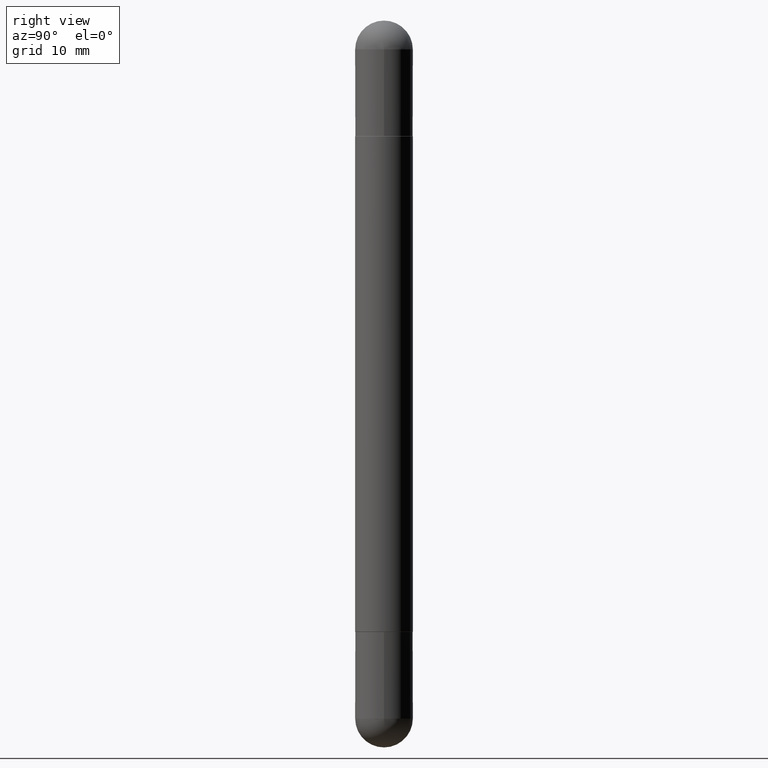
[diagram: clean part render]
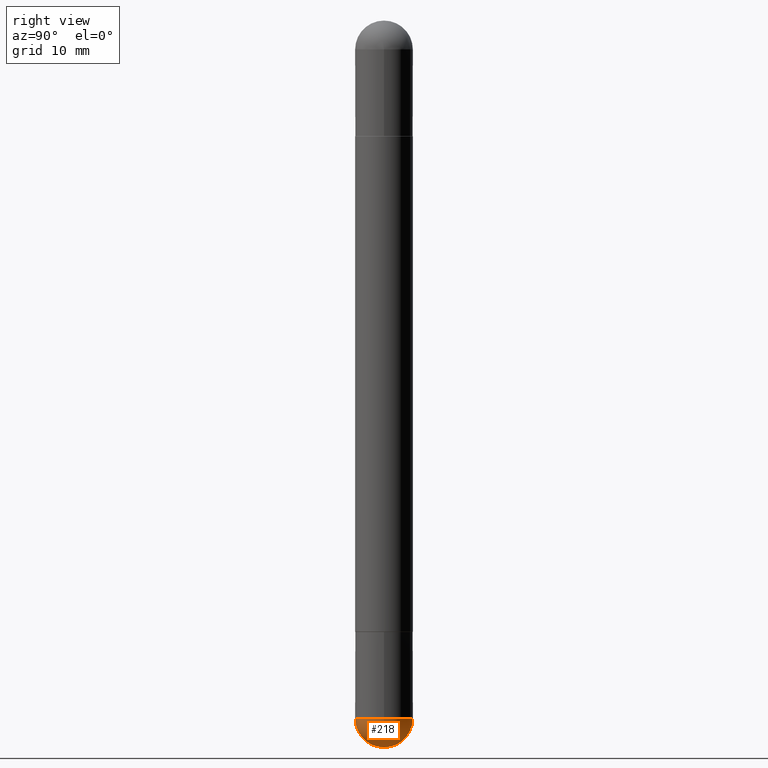
[diagram: same view with one face highlighted and labeled with its STEP entity id]
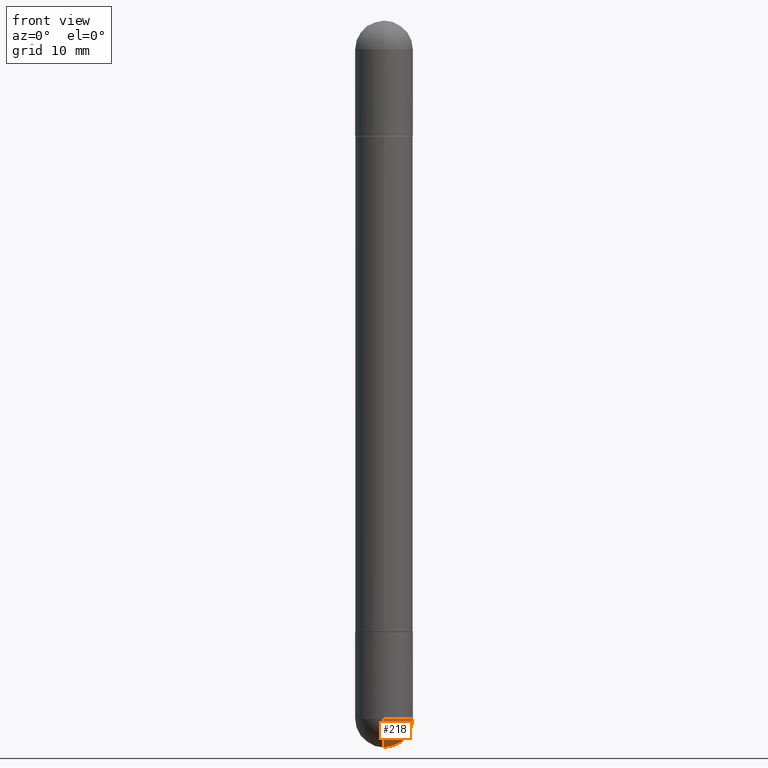
[diagram: same view with one face highlighted and labeled with its STEP entity id]
A machine part, right view. The second image highlights one B-rep face of the part: STEP entity #218.
A second angle (front view) of the same face is appended — the face is thin or edge-on in the first view.
In plain terms, the highlighted spherical surface has radius 2.5006 mm.
Its self-contained STEP definition (entity closure, byte-faithful):
#18 = AXIS2_PLACEMENT_3D ( 'NONE', #71, #106, #781 ) ;
#59 = CARTESIAN_POINT ( 'NONE',  ( 5.738586058125595532E-29, -9.128075209003904434E-15, -2.480300000000001059 ) ) ;
#71 = CARTESIAN_POINT ( 'NONE',  ( 5.824739876012068780E-29, -8.316184826923546689E-15, -2.381850000000000467 ) ) ;
#74 = EDGE_CURVE ( 'NONE', #494, #322, #173, .T. ) ;
#90 = CARTESIAN_POINT ( 'NONE',  ( 5.493620098098182533E-29, -8.790367195063598563E-15, -2.381850000000000467 ) ) ;
#104 = AXIS2_PLACEMENT_3D ( 'NONE', #90, #587, #219 ) ;
#106 = DIRECTION ( 'NONE',  ( -2.445468806185136597E-29, 3.491481338843145583E-15, 1.000000000000000000 ) ) ;
#129 = CARTESIAN_POINT ( 'NONE',  ( 5.824739876012068780E-29, -8.316184826923546689E-15, -2.381850000000000467 ) ) ;
#131 = CARTESIAN_POINT ( 'NONE',  ( -6.995293233557624958E-16, -0.09845000000000865559, -2.381850000000000023 ) ) ;
#159 = FACE_OUTER_BOUND ( 'NONE', #405, .T. ) ;
#173 = CIRCLE ( 'NONE', #18, 0.09845000000000000973 ) ;
#218 = ADVANCED_FACE ( 'NONE', ( #159 ), #652, .T. ) ;
#219 = DIRECTION ( 'NONE',  ( 6.982962677686265922E-15, 1.000000000000000000, -2.774858297271973643E-15 ) ) ;
#244 = AXIS2_PLACEMENT_3D ( 'NONE', #414, #291, #743 ) ;
#291 = DIRECTION ( 'NONE',  ( 1.000000000000000000, -6.982962677686265922E-15, 4.883557194083112340E-29 ) ) ;
#306 = DIRECTION ( 'NONE',  ( 1.000000000000000000, -6.982962677686273810E-15, 0.000000000000000000 ) ) ;
#322 = VERTEX_POINT ( 'NONE', #431 ) ;
#330 = EDGE_CURVE ( 'NONE', #675, #494, #403, .T. ) ;
#403 = CIRCLE ( 'NONE', #515, 0.09845000000000000973 ) ;
#405 = EDGE_LOOP ( 'NONE', ( #458, #689, #542, #588 ) ) ;
#414 = CARTESIAN_POINT ( 'NONE',  ( 5.493620098098182533E-29, -8.790367195063598563E-15, -2.381850000000000467 ) ) ;
#422 = EDGE_CURVE ( 'NONE', #434, #322, #682, .T. ) ;
#431 = CARTESIAN_POINT ( 'NONE',  ( 6.874726756182700483E-16, 0.09844999999999154427, -2.381850000000000911 ) ) ;
#434 = VERTEX_POINT ( 'NONE', #59 ) ;
#458 = ORIENTED_EDGE ( 'NONE', *, *, #797, .F. ) ;
#468 = CIRCLE ( 'NONE', #570, 0.09845000000000017626 ) ;
#494 = VERTEX_POINT ( 'NONE', #563 ) ;
#515 = AXIS2_PLACEMENT_3D ( 'NONE', #129, #535, #306 ) ;
#535 = DIRECTION ( 'NONE',  ( -2.445468806185136597E-29, 3.491481338843145583E-15, 1.000000000000000000 ) ) ;
#542 = ORIENTED_EDGE ( 'NONE', *, *, #74, .F. ) ;
#559 = DIRECTION ( 'NONE',  ( -1.000000000000000000, 7.105427357601001070E-15, -4.926315508542082329E-29 ) ) ;
#563 = CARTESIAN_POINT ( 'NONE',  ( 0.09845000000000000973, -8.488227569895042768E-15, -2.381850000000000467 ) ) ;
#570 = AXIS2_PLACEMENT_3D ( 'NONE', #746, #559, #759 ) ;
#587 = DIRECTION ( 'NONE',  ( -1.000000000000000000, 6.982962677686265922E-15, -4.883557194083112901E-29 ) ) ;
#588 = ORIENTED_EDGE ( 'NONE', *, *, #330, .F. ) ;
#652 = SPHERICAL_SURFACE ( 'NONE', #104, 0.09845000000000017626 ) ;
#675 = VERTEX_POINT ( 'NONE', #131 ) ;
#682 = CIRCLE ( 'NONE', #244, 0.09845000000000017626 ) ;
#689 = ORIENTED_EDGE ( 'NONE', *, *, #422, .T. ) ;
#743 = DIRECTION ( 'NONE',  ( 6.982962677686265922E-15, 1.000000000000000000, 0.000000000000000000 ) ) ;
#746 = CARTESIAN_POINT ( 'NONE',  ( 5.493620098098182533E-29, -8.790367195063598563E-15, -2.381850000000000467 ) ) ;
#759 = DIRECTION ( 'NONE',  ( -7.105427357601001070E-15, -1.000000000000000000, 0.000000000000000000 ) ) ;
#781 = DIRECTION ( 'NONE',  ( 1.000000000000000000, -6.982962677686273810E-15, 0.000000000000000000 ) ) ;
#797 = EDGE_CURVE ( 'NONE', #434, #675, #468, .T. ) ;